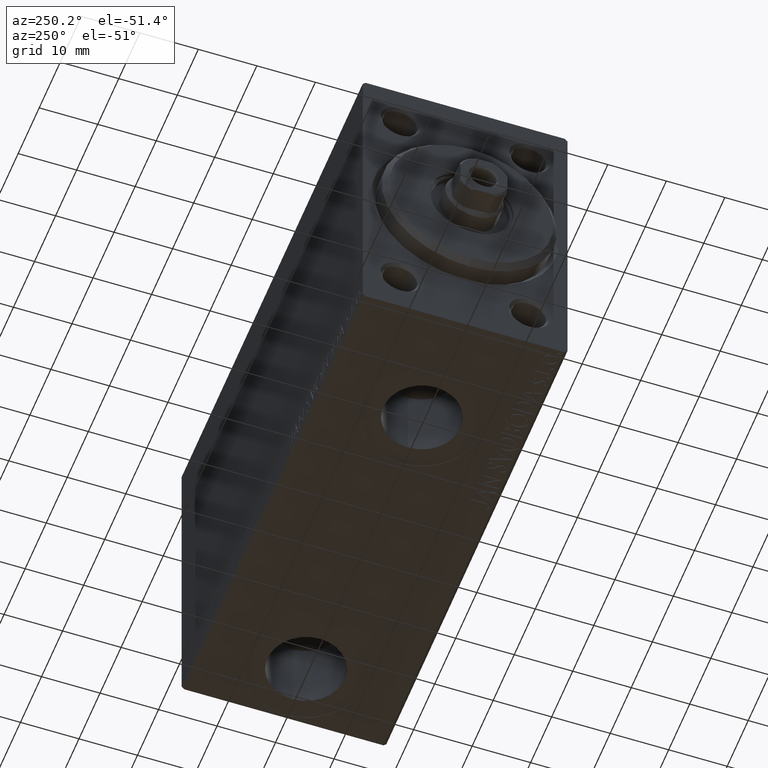
[diagram: clean part render]
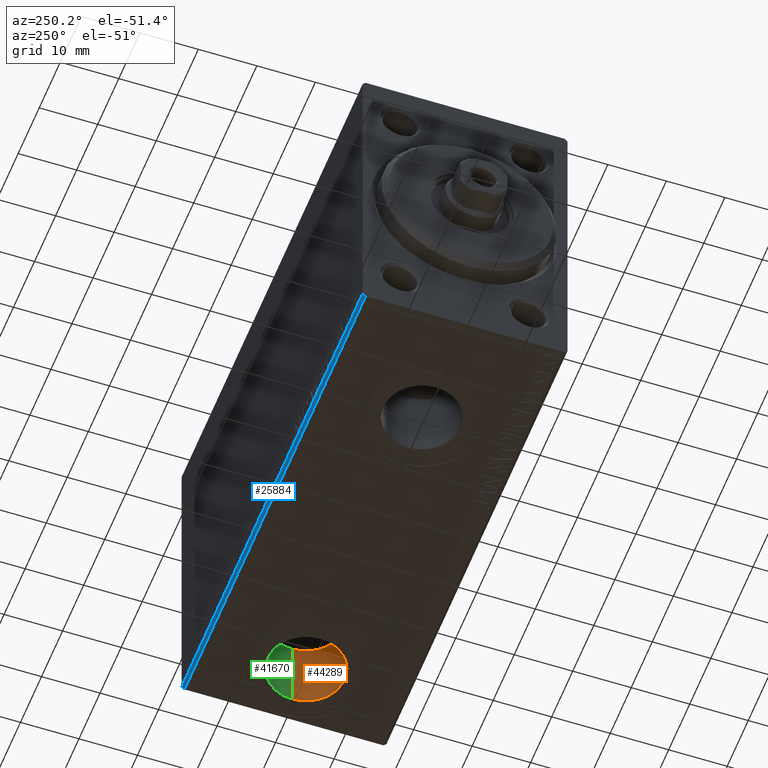
[diagram: same view with three faces highlighted in distinct colors, each labeled with its STEP entity id]
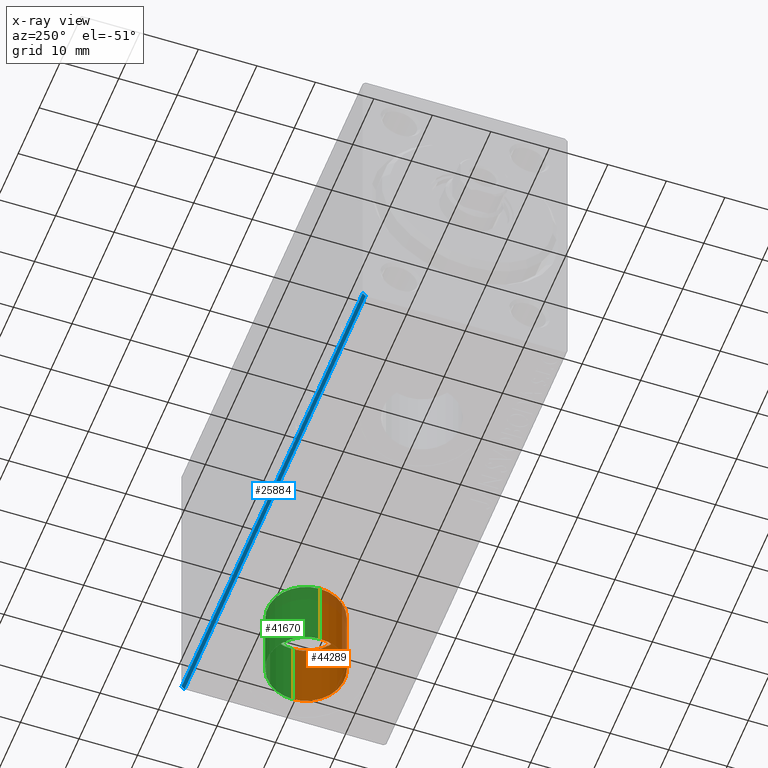
[diagram: x-ray of the same camera — body ghosted, the three highlighted faces saturated]
A machine part, auxiliary view with three faces highlighted in distinct colors.
The next image is the same camera in x-ray (body ghosted, the three faces saturated) — at least one of them is partly hidden behind the body in this view.
Their STEP definitions:

[orange] entity #44289 — the highlighted cylindrical surface (partial cylindrical patch) has radius 6.58 mm, axis along (-0, -0, -1).
#222 = AXIS2_PLACEMENT_3D ( 'NONE', #5526, #34501, #44407 ) ;
#1510 = FACE_OUTER_BOUND ( 'NONE', #21506, .T. ) ;
#1818 = VERTEX_POINT ( 'NONE', #13666 ) ;
#3277 = CARTESIAN_POINT ( 'NONE',  ( 82.08000000000001251, -1.232851729569972347E-14, -14.50000000000000711 ) ) ;
#4425 = CARTESIAN_POINT ( 'NONE',  ( 68.92000000000001592, -1.313433488953868251E-14, -14.50000000000000711 ) ) ;
#5526 = CARTESIAN_POINT ( 'NONE',  ( 75.50000000000001421, -1.313433488953868251E-14, -14.50000000000000711 ) ) ;
#6338 = VERTEX_POINT ( 'NONE', #14850 ) ;
#7945 = ORIENTED_EDGE ( 'NONE', *, *, #13295, .F. ) ;
#8172 = AXIS2_PLACEMENT_3D ( 'NONE', #15815, #22039, #8189 ) ;
#8189 = DIRECTION ( 'NONE',  ( -1.000000000000000000, 0.000000000000000000, 0.000000000000000000 ) ) ;
#9861 = VECTOR ( 'NONE', #17798, 1000.000000000000000 ) ;
#12246 = VERTEX_POINT ( 'NONE', #43954 ) ;
#13195 = DIRECTION ( 'NONE',  ( 0.000000000000000000, 0.000000000000000000, -1.000000000000000000 ) ) ;
#13295 = EDGE_CURVE ( 'NONE', #1818, #12246, #27453, .T. ) ;
#13666 = CARTESIAN_POINT ( 'NONE',  ( 82.08000000000001251, -1.232851729569972347E-14, -14.50000000000000711 ) ) ;
#14850 = CARTESIAN_POINT ( 'NONE',  ( 82.08000000000001251, -1.232851729569972347E-14, -27.40000000000000924 ) ) ;
#15815 = CARTESIAN_POINT ( 'NONE',  ( 75.50000000000001421, -1.313433488953868251E-14, -14.50000000000000711 ) ) ;
#16249 = EDGE_CURVE ( 'NONE', #1818, #6338, #42389, .T. ) ;
#17273 = EDGE_CURVE ( 'NONE', #12246, #26421, #19182, .T. ) ;
#17798 = DIRECTION ( 'NONE',  ( -0.000000000000000000, -0.000000000000000000, -1.000000000000000000 ) ) ;
#18095 = AXIS2_PLACEMENT_3D ( 'NONE', #21000, #13195, #44692 ) ;
#19182 = LINE ( 'NONE', #4425, #39311 ) ;
#20325 = ORIENTED_EDGE ( 'NONE', *, *, #26365, .T. ) ;
#21000 = CARTESIAN_POINT ( 'NONE',  ( 75.50000000000001421, -1.313433488953868251E-14, -27.40000000000000924 ) ) ;
#21506 = EDGE_LOOP ( 'NONE', ( #7945, #21598, #20325, #25853 ) ) ;
#21598 = ORIENTED_EDGE ( 'NONE', *, *, #16249, .T. ) ;
#22039 = DIRECTION ( 'NONE',  ( -0.000000000000000000, -0.000000000000000000, -1.000000000000000000 ) ) ;
#22186 = DIRECTION ( 'NONE',  ( -0.000000000000000000, -0.000000000000000000, -1.000000000000000000 ) ) ;
#25853 = ORIENTED_EDGE ( 'NONE', *, *, #17273, .F. ) ;
#26365 = EDGE_CURVE ( 'NONE', #6338, #26421, #37909, .T. ) ;
#26404 = CYLINDRICAL_SURFACE ( 'NONE', #8172, 6.580000000000002736 ) ;
#26421 = VERTEX_POINT ( 'NONE', #41902 ) ;
#27453 = CIRCLE ( 'NONE', #222, 6.580000000000002736 ) ;
#34501 = DIRECTION ( 'NONE',  ( 0.000000000000000000, 0.000000000000000000, -1.000000000000000000 ) ) ;
#37909 = CIRCLE ( 'NONE', #18095, 6.580000000000002736 ) ;
#39311 = VECTOR ( 'NONE', #22186, 1000.000000000000000 ) ;
#41902 = CARTESIAN_POINT ( 'NONE',  ( 68.92000000000001592, -1.313433488953868251E-14, -27.40000000000000924 ) ) ;
#42389 = LINE ( 'NONE', #3277, #9861 ) ;
#43954 = CARTESIAN_POINT ( 'NONE',  ( 68.92000000000001592, -1.313433488953868251E-14, -14.50000000000000711 ) ) ;
#44289 = ADVANCED_FACE ( 'NONE', ( #1510 ), #26404, .F. ) ;
#44407 = DIRECTION ( 'NONE',  ( -1.000000000000000000, 0.000000000000000000, 0.000000000000000000 ) ) ;
#44692 = DIRECTION ( 'NONE',  ( -1.000000000000000000, 0.000000000000000000, 0.000000000000000000 ) ) ;

[blue] entity #25884 — the highlighted planar face has unit normal (0, -0.7071, 0.7071).
#11 = VECTOR ( 'NONE', #37102, 1000.000000000000114 ) ;
#359 = CARTESIAN_POINT ( 'NONE',  ( 0.000000000000000000, 16.99999999999999289, -27.50000000000001066 ) ) ;
#1013 = CARTESIAN_POINT ( 'NONE',  ( 86.00000000000000000, 16.99999999999999289, -27.50000000000001066 ) ) ;
#3197 = DIRECTION ( 'NONE',  ( 0.000000000000000000, -0.7071067811865475727, 0.7071067811865475727 ) ) ;
#3291 = ORIENTED_EDGE ( 'NONE', *, *, #42196, .F. ) ;
#3375 = AXIS2_PLACEMENT_3D ( 'NONE', #44855, #3197, #20485 ) ;
#4455 = VERTEX_POINT ( 'NONE', #40197 ) ;
#9030 = LINE ( 'NONE', #23099, #11 ) ;
#9575 = VECTOR ( 'NONE', #37676, 1000.000000000000000 ) ;
#9815 = LINE ( 'NONE', #23436, #9575 ) ;
#11753 = DIRECTION ( 'NONE',  ( -0.000000000000000000, 0.7071067811865474617, 0.7071067811865474617 ) ) ;
#14755 = CARTESIAN_POINT ( 'NONE',  ( 86.00000000000000000, 22.25000000000000355, -22.25000000000000355 ) ) ;
#16291 = ORIENTED_EDGE ( 'NONE', *, *, #41528, .F. ) ;
#16516 = VERTEX_POINT ( 'NONE', #19830 ) ;
#16613 = EDGE_CURVE ( 'NONE', #41408, #4455, #36360, .T. ) ;
#18526 = VERTEX_POINT ( 'NONE', #359 ) ;
#19830 = CARTESIAN_POINT ( 'NONE',  ( 0.000000000000000000, 17.50000000000000711, -26.99999999999999645 ) ) ;
#20485 = DIRECTION ( 'NONE',  ( -1.000000000000000000, 0.000000000000000000, 0.000000000000000000 ) ) ;
#20661 = EDGE_LOOP ( 'NONE', ( #43154, #37134, #16291, #3291 ) ) ;
#23099 = CARTESIAN_POINT ( 'NONE',  ( 0.000000000000000000, 17.50000000000000711, -26.99999999999999645 ) ) ;
#23436 = CARTESIAN_POINT ( 'NONE',  ( 86.00000000000000000, 17.50000000000000711, -26.99999999999999645 ) ) ;
#23713 = FACE_OUTER_BOUND ( 'NONE', #20661, .T. ) ;
#23998 = VECTOR ( 'NONE', #32793, 1000.000000000000000 ) ;
#25884 = ADVANCED_FACE ( 'NONE', ( #23713 ), #41620, .F. ) ;
#27542 = EDGE_CURVE ( 'NONE', #18526, #41408, #28913, .T. ) ;
#28913 = LINE ( 'NONE', #1013, #23998 ) ;
#29574 = CARTESIAN_POINT ( 'NONE',  ( 86.00000000000000000, 16.99999999999999289, -27.50000000000001066 ) ) ;
#32793 = DIRECTION ( 'NONE',  ( 1.000000000000000000, 0.000000000000000000, 0.000000000000000000 ) ) ;
#35595 = VECTOR ( 'NONE', #11753, 1000.000000000000114 ) ;
#36360 = LINE ( 'NONE', #14755, #35595 ) ;
#37102 = DIRECTION ( 'NONE',  ( 0.000000000000000000, -0.7071067811865474617, -0.7071067811865474617 ) ) ;
#37134 = ORIENTED_EDGE ( 'NONE', *, *, #27542, .F. ) ;
#37676 = DIRECTION ( 'NONE',  ( -1.000000000000000000, 0.000000000000000000, 0.000000000000000000 ) ) ;
#40197 = CARTESIAN_POINT ( 'NONE',  ( 86.00000000000000000, 17.50000000000000711, -26.99999999999999645 ) ) ;
#41408 = VERTEX_POINT ( 'NONE', #29574 ) ;
#41528 = EDGE_CURVE ( 'NONE', #16516, #18526, #9030, .T. ) ;
#41620 = PLANE ( 'NONE',  #3375 ) ;
#42196 = EDGE_CURVE ( 'NONE', #4455, #16516, #9815, .T. ) ;
#43154 = ORIENTED_EDGE ( 'NONE', *, *, #16613, .F. ) ;
#44855 = CARTESIAN_POINT ( 'NONE',  ( 86.00000000000000000, 17.50000000000000711, -26.99999999999999645 ) ) ;

[green] entity #41670 — the highlighted cylindrical surface (partial cylindrical patch) has radius 6.58 mm, axis along (-0, -0, -1).
#250 = ORIENTED_EDGE ( 'NONE', *, *, #16249, .F. ) ;
#623 = DIRECTION ( 'NONE',  ( 0.000000000000000000, 0.000000000000000000, -1.000000000000000000 ) ) ;
#937 = DIRECTION ( 'NONE',  ( -1.000000000000000000, 0.000000000000000000, 0.000000000000000000 ) ) ;
#1818 = VERTEX_POINT ( 'NONE', #13666 ) ;
#3277 = CARTESIAN_POINT ( 'NONE',  ( 82.08000000000001251, -1.232851729569972347E-14, -14.50000000000000711 ) ) ;
#3927 = DIRECTION ( 'NONE',  ( -0.000000000000000000, -0.000000000000000000, -1.000000000000000000 ) ) ;
#4334 = EDGE_CURVE ( 'NONE', #12246, #1818, #13353, .T. ) ;
#4425 = CARTESIAN_POINT ( 'NONE',  ( 68.92000000000001592, -1.313433488953868251E-14, -14.50000000000000711 ) ) ;
#6338 = VERTEX_POINT ( 'NONE', #14850 ) ;
#6770 = ORIENTED_EDGE ( 'NONE', *, *, #4334, .F. ) ;
#9555 = ORIENTED_EDGE ( 'NONE', *, *, #17273, .T. ) ;
#9861 = VECTOR ( 'NONE', #17798, 1000.000000000000000 ) ;
#11367 = AXIS2_PLACEMENT_3D ( 'NONE', #39987, #29669, #43664 ) ;
#12246 = VERTEX_POINT ( 'NONE', #43954 ) ;
#13353 = CIRCLE ( 'NONE', #22900, 6.580000000000002736 ) ;
#13666 = CARTESIAN_POINT ( 'NONE',  ( 82.08000000000001251, -1.232851729569972347E-14, -14.50000000000000711 ) ) ;
#14774 = CYLINDRICAL_SURFACE ( 'NONE', #19185, 6.580000000000002736 ) ;
#14850 = CARTESIAN_POINT ( 'NONE',  ( 82.08000000000001251, -1.232851729569972347E-14, -27.40000000000000924 ) ) ;
#15007 = FACE_OUTER_BOUND ( 'NONE', #43600, .T. ) ;
#15502 = ORIENTED_EDGE ( 'NONE', *, *, #17420, .T. ) ;
#16249 = EDGE_CURVE ( 'NONE', #1818, #6338, #42389, .T. ) ;
#17273 = EDGE_CURVE ( 'NONE', #12246, #26421, #19182, .T. ) ;
#17420 = EDGE_CURVE ( 'NONE', #26421, #6338, #37082, .T. ) ;
#17798 = DIRECTION ( 'NONE',  ( -0.000000000000000000, -0.000000000000000000, -1.000000000000000000 ) ) ;
#19182 = LINE ( 'NONE', #4425, #39311 ) ;
#19185 = AXIS2_PLACEMENT_3D ( 'NONE', #42816, #3927, #937 ) ;
#21824 = DIRECTION ( 'NONE',  ( -1.000000000000000000, 0.000000000000000000, 0.000000000000000000 ) ) ;
#22186 = DIRECTION ( 'NONE',  ( -0.000000000000000000, -0.000000000000000000, -1.000000000000000000 ) ) ;
#22900 = AXIS2_PLACEMENT_3D ( 'NONE', #25059, #623, #21824 ) ;
#25059 = CARTESIAN_POINT ( 'NONE',  ( 75.50000000000001421, -1.313433488953868251E-14, -14.50000000000000711 ) ) ;
#26421 = VERTEX_POINT ( 'NONE', #41902 ) ;
#29669 = DIRECTION ( 'NONE',  ( 0.000000000000000000, 0.000000000000000000, -1.000000000000000000 ) ) ;
#37082 = CIRCLE ( 'NONE', #11367, 6.580000000000002736 ) ;
#39311 = VECTOR ( 'NONE', #22186, 1000.000000000000000 ) ;
#39987 = CARTESIAN_POINT ( 'NONE',  ( 75.50000000000001421, -1.313433488953868251E-14, -27.40000000000000924 ) ) ;
#41670 = ADVANCED_FACE ( 'NONE', ( #15007 ), #14774, .F. ) ;
#41902 = CARTESIAN_POINT ( 'NONE',  ( 68.92000000000001592, -1.313433488953868251E-14, -27.40000000000000924 ) ) ;
#42389 = LINE ( 'NONE', #3277, #9861 ) ;
#42816 = CARTESIAN_POINT ( 'NONE',  ( 75.50000000000001421, -1.313433488953868251E-14, -14.50000000000000711 ) ) ;
#43600 = EDGE_LOOP ( 'NONE', ( #250, #6770, #9555, #15502 ) ) ;
#43664 = DIRECTION ( 'NONE',  ( -1.000000000000000000, 0.000000000000000000, 0.000000000000000000 ) ) ;
#43954 = CARTESIAN_POINT ( 'NONE',  ( 68.92000000000001592, -1.313433488953868251E-14, -14.50000000000000711 ) ) ;